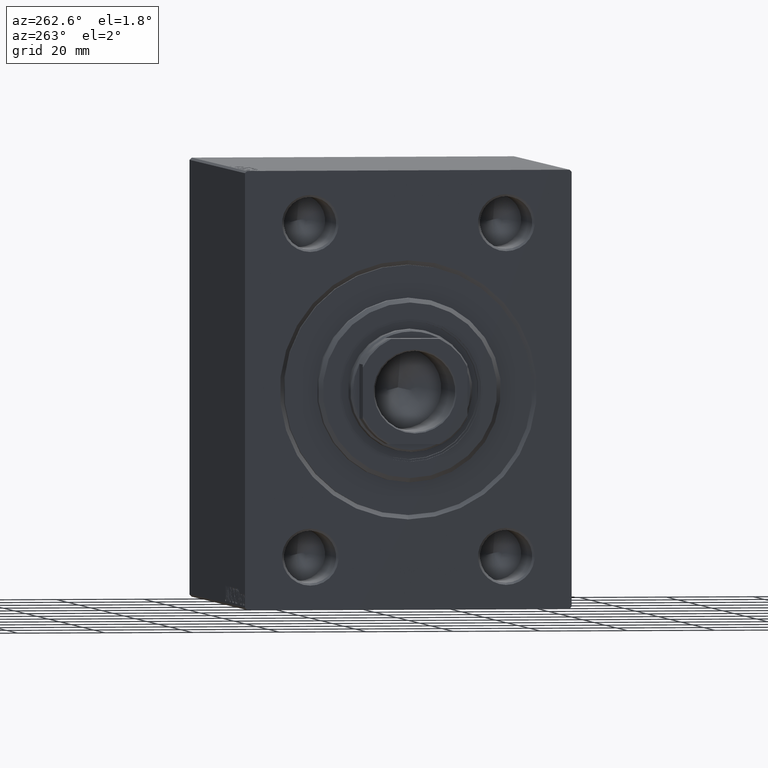
[diagram: clean part render]
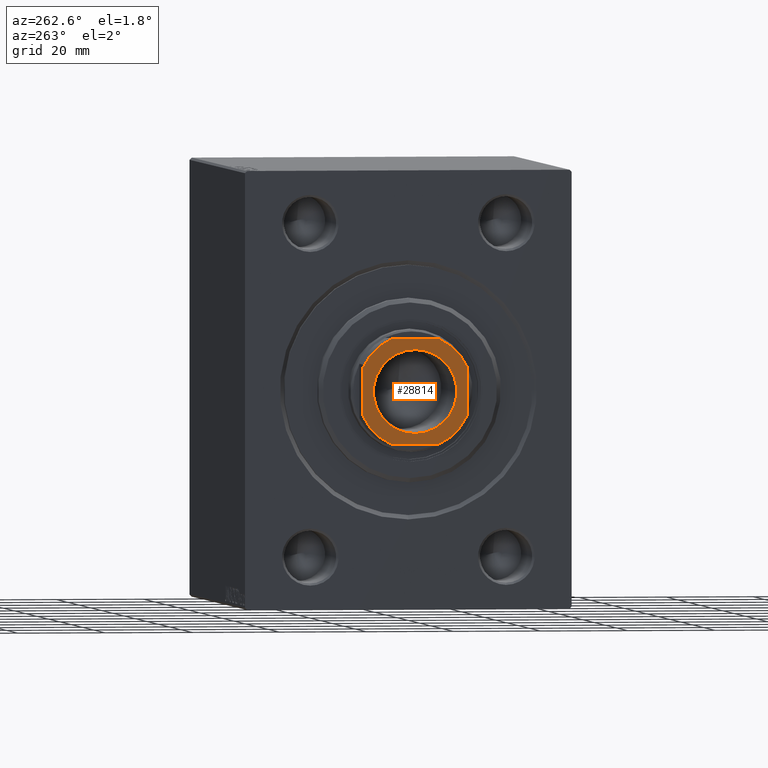
[diagram: same view with one face highlighted and labeled with its STEP entity id]
A machine part, auxiliary view. The second image highlights one B-rep face of the part: STEP entity #28814.
In plain terms, the highlighted planar face has unit normal (-1, 0, 0).
Its self-contained STEP definition (entity closure, byte-faithful):
#296 = CARTESIAN_POINT ( 'NONE',  ( 12.00000000000000000, -5.499090833947034795, 96.00000000000000000 ) ) ;
#460 = VERTEX_POINT ( 'NONE', #40600 ) ;
#750 = CARTESIAN_POINT ( 'NONE',  ( -12.00000000000000000, -5.499090833947057888, 96.00000000000000000 ) ) ;
#871 = DIRECTION ( 'NONE',  ( 0.000000000000000000, -0.000000000000000000, -1.000000000000000000 ) ) ;
#2116 = EDGE_CURVE ( 'NONE', #10568, #32394, #16293, .T. ) ;
#2241 = VERTEX_POINT ( 'NONE', #750 ) ;
#2856 = DIRECTION ( 'NONE',  ( 1.000000000000000000, 0.000000000000000000, 0.000000000000000000 ) ) ;
#3689 = EDGE_CURVE ( 'NONE', #9636, #26706, #40787, .T. ) ;
#4319 = DIRECTION ( 'NONE',  ( -0.000000000000000000, 0.000000000000000000, 1.000000000000000000 ) ) ;
#4824 = DIRECTION ( 'NONE',  ( 1.000000000000000000, 0.000000000000000000, 0.000000000000000000 ) ) ;
#4836 = LINE ( 'NONE', #14949, #6238 ) ;
#5494 = DIRECTION ( 'NONE',  ( 0.000000000000000000, -0.000000000000000000, -1.000000000000000000 ) ) ;
#5520 = ORIENTED_EDGE ( 'NONE', *, *, #28096, .T. ) ;
#5988 = LINE ( 'NONE', #40166, #17168 ) ;
#6238 = VECTOR ( 'NONE', #25298, 1000.000000000000000 ) ;
#6321 = VERTEX_POINT ( 'NONE', #44456 ) ;
#6692 = CARTESIAN_POINT ( 'NONE',  ( 11.99999999999999645, 11.99999999999999645, 96.00000000000000000 ) ) ;
#7682 = CARTESIAN_POINT ( 'NONE',  ( 0.000000000000000000, 0.000000000000000000, 96.00000000000000000 ) ) ;
#7839 = DIRECTION ( 'NONE',  ( 1.000000000000000000, 0.000000000000000000, 0.000000000000000000 ) ) ;
#8079 = EDGE_LOOP ( 'NONE', ( #5520, #22665 ) ) ;
#8202 = DIRECTION ( 'NONE',  ( 1.000000000000000000, 0.000000000000000000, 0.000000000000000000 ) ) ;
#9636 = VERTEX_POINT ( 'NONE', #27216 ) ;
#10568 = VERTEX_POINT ( 'NONE', #33812 ) ;
#11244 = AXIS2_PLACEMENT_3D ( 'NONE', #24190, #11578, #8202 ) ;
#11257 = PLANE ( 'NONE',  #26370 ) ;
#11578 = DIRECTION ( 'NONE',  ( -0.000000000000000000, 0.000000000000000000, 1.000000000000000000 ) ) ;
#12997 = CARTESIAN_POINT ( 'NONE',  ( -11.99999999999999822, -12.00000000000000355, 96.00000000000000000 ) ) ;
#14121 = CIRCLE ( 'NONE', #19878, 13.20000000000002238 ) ;
#14336 = ORIENTED_EDGE ( 'NONE', *, *, #23664, .T. ) ;
#14683 = DIRECTION ( 'NONE',  ( -0.000000000000000000, 0.000000000000000000, 1.000000000000000000 ) ) ;
#14933 = EDGE_CURVE ( 'NONE', #460, #28952, #16057, .T. ) ;
#14949 = CARTESIAN_POINT ( 'NONE',  ( -12.00000000000000355, 11.99999999999999645, 96.00000000000000000 ) ) ;
#15380 = CARTESIAN_POINT ( 'NONE',  ( 0.000000000000000000, 0.000000000000000000, 96.00000000000000000 ) ) ;
#15939 = ORIENTED_EDGE ( 'NONE', *, *, #21484, .T. ) ;
#16057 = CIRCLE ( 'NONE', #32604, 13.20000000000002238 ) ;
#16293 = CIRCLE ( 'NONE', #11244, 13.20000000000000995 ) ;
#17078 = CARTESIAN_POINT ( 'NONE',  ( -12.00000000000000178, 5.499090833947057000, 96.00000000000000000 ) ) ;
#17139 = CIRCLE ( 'NONE', #42279, 9.549999999999988276 ) ;
#17168 = VECTOR ( 'NONE', #32988, 1000.000000000000000 ) ;
#17388 = ORIENTED_EDGE ( 'NONE', *, *, #14933, .T. ) ;
#17645 = DIRECTION ( 'NONE',  ( -2.168404344971008868E-16, 1.000000000000000000, -0.000000000000000000 ) ) ;
#18618 = ORIENTED_EDGE ( 'NONE', *, *, #34397, .T. ) ;
#19878 = AXIS2_PLACEMENT_3D ( 'NONE', #29310, #14683, #36050 ) ;
#19947 = DIRECTION ( 'NONE',  ( -0.000000000000000000, 0.000000000000000000, 1.000000000000000000 ) ) ;
#19970 = DIRECTION ( 'NONE',  ( 1.000000000000000000, 0.000000000000000000, 0.000000000000000000 ) ) ;
#21484 = EDGE_CURVE ( 'NONE', #26706, #10568, #27999, .T. ) ;
#22512 = FACE_BOUND ( 'NONE', #8079, .T. ) ;
#22665 = ORIENTED_EDGE ( 'NONE', *, *, #32633, .T. ) ;
#23319 = CARTESIAN_POINT ( 'NONE',  ( 0.000000000000000000, 0.000000000000000000, 96.00000000000000000 ) ) ;
#23664 = EDGE_CURVE ( 'NONE', #32394, #460, #4836, .T. ) ;
#24190 = CARTESIAN_POINT ( 'NONE',  ( 0.000000000000000000, 0.000000000000000000, 96.00000000000000000 ) ) ;
#25298 = DIRECTION ( 'NONE',  ( -1.000000000000000000, -0.000000000000000000, -0.000000000000000000 ) ) ;
#25445 = DIRECTION ( 'NONE',  ( 1.000000000000000000, 0.000000000000000000, 0.000000000000000000 ) ) ;
#25457 = VERTEX_POINT ( 'NONE', #31426 ) ;
#25663 = CIRCLE ( 'NONE', #31411, 9.549999999999988276 ) ;
#26370 = AXIS2_PLACEMENT_3D ( 'NONE', #38698, #29926, #32859 ) ;
#26706 = VERTEX_POINT ( 'NONE', #296 ) ;
#27216 = CARTESIAN_POINT ( 'NONE',  ( 5.499090833947025914, -12.00000000000000355, 96.00000000000000000 ) ) ;
#27547 = EDGE_CURVE ( 'NONE', #2241, #25457, #14121, .T. ) ;
#27999 = LINE ( 'NONE', #6692, #44224 ) ;
#28096 = EDGE_CURVE ( 'NONE', #6321, #33769, #25663, .T. ) ;
#28292 = ORIENTED_EDGE ( 'NONE', *, *, #33583, .T. ) ;
#28561 = AXIS2_PLACEMENT_3D ( 'NONE', #7682, #4319, #25445 ) ;
#28814 = ADVANCED_FACE ( 'NONE', ( #22512, #36226 ), #11257, .T. ) ;
#28844 = ORIENTED_EDGE ( 'NONE', *, *, #2116, .T. ) ;
#28952 = VERTEX_POINT ( 'NONE', #17078 ) ;
#28959 = ORIENTED_EDGE ( 'NONE', *, *, #3689, .T. ) ;
#29310 = CARTESIAN_POINT ( 'NONE',  ( 0.000000000000000000, 0.000000000000000000, 96.00000000000000000 ) ) ;
#29926 = DIRECTION ( 'NONE',  ( -0.000000000000000000, 0.000000000000000000, 1.000000000000000000 ) ) ;
#31411 = AXIS2_PLACEMENT_3D ( 'NONE', #38417, #871, #7839 ) ;
#31426 = CARTESIAN_POINT ( 'NONE',  ( -5.499090833947052559, -12.00000000000000355, 96.00000000000000000 ) ) ;
#32394 = VERTEX_POINT ( 'NONE', #39777 ) ;
#32604 = AXIS2_PLACEMENT_3D ( 'NONE', #23319, #19947, #2856 ) ;
#32633 = EDGE_CURVE ( 'NONE', #33769, #6321, #17139, .T. ) ;
#32859 = DIRECTION ( 'NONE',  ( 1.000000000000000000, 0.000000000000000000, 0.000000000000000000 ) ) ;
#32988 = DIRECTION ( 'NONE',  ( 2.168404344971008868E-16, -1.000000000000000000, 0.000000000000000000 ) ) ;
#33113 = EDGE_LOOP ( 'NONE', ( #15939, #28844, #14336, #17388, #28292, #40022, #18618, #28959 ) ) ;
#33583 = EDGE_CURVE ( 'NONE', #28952, #2241, #5988, .T. ) ;
#33769 = VERTEX_POINT ( 'NONE', #35198 ) ;
#33812 = CARTESIAN_POINT ( 'NONE',  ( 11.99999999999999645, 5.499090833947039236, 96.00000000000000000 ) ) ;
#34397 = EDGE_CURVE ( 'NONE', #25457, #9636, #43800, .T. ) ;
#35198 = CARTESIAN_POINT ( 'NONE',  ( -9.549999999999988276, 1.169537693185720980E-15, 96.00000000000000000 ) ) ;
#36050 = DIRECTION ( 'NONE',  ( 1.000000000000000000, 0.000000000000000000, 0.000000000000000000 ) ) ;
#36226 = FACE_OUTER_BOUND ( 'NONE', #33113, .T. ) ;
#38417 = CARTESIAN_POINT ( 'NONE',  ( 0.000000000000000000, 0.000000000000000000, 96.00000000000000000 ) ) ;
#38698 = CARTESIAN_POINT ( 'NONE',  ( 0.000000000000000000, 0.000000000000000000, 96.00000000000000000 ) ) ;
#39777 = CARTESIAN_POINT ( 'NONE',  ( 5.499090833947041901, 11.99999999999999645, 96.00000000000000000 ) ) ;
#40022 = ORIENTED_EDGE ( 'NONE', *, *, #27547, .T. ) ;
#40159 = VECTOR ( 'NONE', #19970, 1000.000000000000000 ) ;
#40166 = CARTESIAN_POINT ( 'NONE',  ( -12.00000000000000355, 11.99999999999999645, 96.00000000000000000 ) ) ;
#40600 = CARTESIAN_POINT ( 'NONE',  ( -5.499090833947067658, 11.99999999999999645, 96.00000000000000000 ) ) ;
#40787 = CIRCLE ( 'NONE', #28561, 13.20000000000000995 ) ;
#42279 = AXIS2_PLACEMENT_3D ( 'NONE', #15380, #5494, #4824 ) ;
#43800 = LINE ( 'NONE', #12997, #40159 ) ;
#44224 = VECTOR ( 'NONE', #17645, 1000.000000000000000 ) ;
#44456 = CARTESIAN_POINT ( 'NONE',  ( 9.549999999999988276, 0.000000000000000000, 96.00000000000000000 ) ) ;